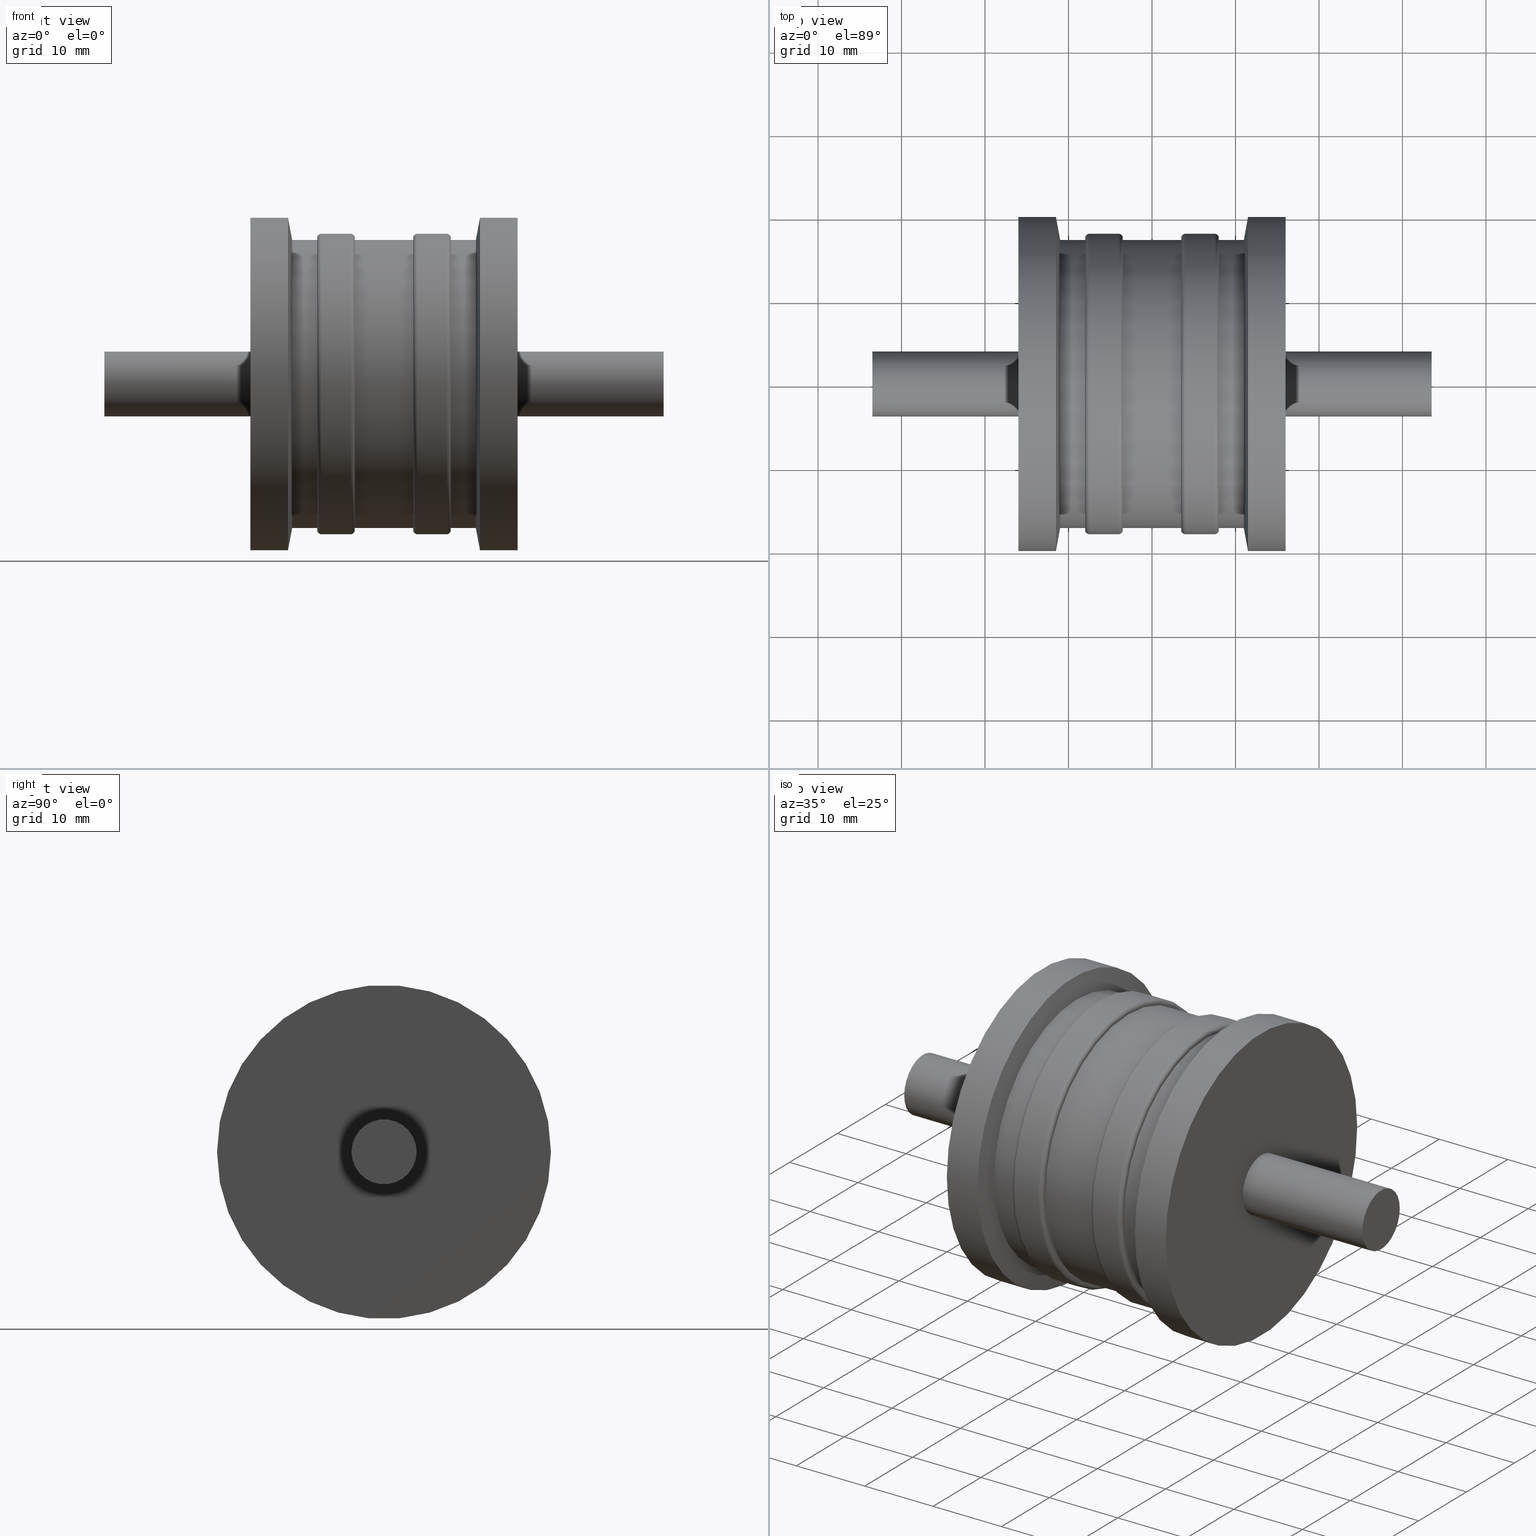
[diagram: canonical four-view strip — front | top / right | iso, engineering-drawing reading convention]
A machine part, canonical four-view strip (front | top / right | iso — engineering-drawing reading convention). The complete STEP part file that produces these views, byte-faithful:
ISO-10303-21;
HEADER;
/* Generated by software containing ST-Developer
 * from STEP Tools, Inc. (www.steptools.com) 
 */

FILE_DESCRIPTION(
/* description */ (''),
/* implementation_level */ '2;1');

FILE_NAME(
/* name */ 
'\\\\SYNOLOGYNAS\\web\\db2\\PR8-M8-D40-H32\\\X2\B3C4BA74\X0\\\DR_PR8-M
8-D40-H32.stp',
/* time_stamp */ '2024-10-21T13:27:52+09:00',
/* author */ ('user'),
/* organization */ (''),
/* preprocessor_version */ 'ST-DEVELOPER v15.6',
/* originating_system */ 'Autodesk Inventor 2015',
/* authorisation */ '');

FILE_SCHEMA (('AUTOMOTIVE_DESIGN { 1 0 10303 214 3 1 1 }'));
ENDSEC;

DATA;
#10=MECHANICAL_DESIGN_GEOMETRIC_PRESENTATION_REPRESENTATION('',(#13),#469);
#11=SHAPE_REPRESENTATION_RELATIONSHIP('SRR','None',#478,#12);
#12=ADVANCED_BREP_SHAPE_REPRESENTATION($,(#14),#468);
#13=STYLED_ITEM('',(#487),#14);
#14=MANIFOLD_SOLID_BREP('\X2\C194B9ACB4DC\X0\1',#259);
#15=CONICAL_SURFACE('',#288,18.625,79.695153531234);
#16=CONICAL_SURFACE('',#299,18.625,79.695153531234);
#17=PLANE('',#266);
#18=PLANE('',#270);
#19=PLANE('',#277);
#20=PLANE('',#281);
#21=PLANE('',#283);
#22=PLANE('',#291);
#23=PLANE('',#294);
#24=PLANE('',#303);
#25=CYLINDRICAL_SURFACE('',#264,18.);
#26=CYLINDRICAL_SURFACE('',#275,18.);
#27=CYLINDRICAL_SURFACE('',#286,20.);
#28=CYLINDRICAL_SURFACE('',#290,17.25);
#29=CYLINDRICAL_SURFACE('',#293,3.9);
#30=CYLINDRICAL_SURFACE('',#297,20.);
#31=CYLINDRICAL_SURFACE('',#301,17.25);
#32=CYLINDRICAL_SURFACE('',#302,17.25);
#33=CYLINDRICAL_SURFACE('',#305,3.9);
#34=FACE_BOUND('',#79,.T.);
#35=FACE_BOUND('',#81,.T.);
#36=FACE_BOUND('',#83,.T.);
#37=FACE_BOUND('',#85,.T.);
#38=FACE_BOUND('',#87,.T.);
#39=FACE_BOUND('',#89,.T.);
#40=FACE_BOUND('',#91,.T.);
#41=FACE_BOUND('',#93,.T.);
#42=FACE_BOUND('',#95,.T.);
#43=FACE_BOUND('',#97,.T.);
#44=FACE_BOUND('',#99,.T.);
#45=FACE_BOUND('',#101,.T.);
#46=FACE_BOUND('',#103,.T.);
#47=FACE_BOUND('',#105,.T.);
#48=FACE_BOUND('',#108,.T.);
#49=FACE_BOUND('',#110,.T.);
#50=FACE_BOUND('',#112,.T.);
#51=FACE_BOUND('',#114,.T.);
#52=FACE_BOUND('',#116,.T.);
#53=FACE_BOUND('',#118,.T.);
#54=FACE_BOUND('',#121,.T.);
#55=FACE_OUTER_BOUND('',#78,.T.);
#56=FACE_OUTER_BOUND('',#80,.T.);
#57=FACE_OUTER_BOUND('',#82,.T.);
#58=FACE_OUTER_BOUND('',#84,.T.);
#59=FACE_OUTER_BOUND('',#86,.T.);
#60=FACE_OUTER_BOUND('',#88,.T.);
#61=FACE_OUTER_BOUND('',#90,.T.);
#62=FACE_OUTER_BOUND('',#92,.T.);
#63=FACE_OUTER_BOUND('',#94,.T.);
#64=FACE_OUTER_BOUND('',#96,.T.);
#65=FACE_OUTER_BOUND('',#98,.T.);
#66=FACE_OUTER_BOUND('',#100,.T.);
#67=FACE_OUTER_BOUND('',#102,.T.);
#68=FACE_OUTER_BOUND('',#104,.T.);
#69=FACE_OUTER_BOUND('',#106,.T.);
#70=FACE_OUTER_BOUND('',#107,.T.);
#71=FACE_OUTER_BOUND('',#109,.T.);
#72=FACE_OUTER_BOUND('',#111,.T.);
#73=FACE_OUTER_BOUND('',#113,.T.);
#74=FACE_OUTER_BOUND('',#115,.T.);
#75=FACE_OUTER_BOUND('',#117,.T.);
#76=FACE_OUTER_BOUND('',#119,.T.);
#77=FACE_OUTER_BOUND('',#120,.T.);
#78=EDGE_LOOP('',(#188));
#79=EDGE_LOOP('',(#189));
#80=EDGE_LOOP('',(#190));
#81=EDGE_LOOP('',(#191));
#82=EDGE_LOOP('',(#192));
#83=EDGE_LOOP('',(#193));
#84=EDGE_LOOP('',(#194));
#85=EDGE_LOOP('',(#195));
#86=EDGE_LOOP('',(#196));
#87=EDGE_LOOP('',(#197));
#88=EDGE_LOOP('',(#198));
#89=EDGE_LOOP('',(#199));
#90=EDGE_LOOP('',(#200));
#91=EDGE_LOOP('',(#201));
#92=EDGE_LOOP('',(#202));
#93=EDGE_LOOP('',(#203));
#94=EDGE_LOOP('',(#204));
#95=EDGE_LOOP('',(#205));
#96=EDGE_LOOP('',(#206));
#97=EDGE_LOOP('',(#207));
#98=EDGE_LOOP('',(#208));
#99=EDGE_LOOP('',(#209));
#100=EDGE_LOOP('',(#210));
#101=EDGE_LOOP('',(#211));
#102=EDGE_LOOP('',(#212));
#103=EDGE_LOOP('',(#213));
#104=EDGE_LOOP('',(#214));
#105=EDGE_LOOP('',(#215));
#106=EDGE_LOOP('',(#216));
#107=EDGE_LOOP('',(#217));
#108=EDGE_LOOP('',(#218));
#109=EDGE_LOOP('',(#219));
#110=EDGE_LOOP('',(#220));
#111=EDGE_LOOP('',(#221));
#112=EDGE_LOOP('',(#222));
#113=EDGE_LOOP('',(#223));
#114=EDGE_LOOP('',(#224));
#115=EDGE_LOOP('',(#225));
#116=EDGE_LOOP('',(#226));
#117=EDGE_LOOP('',(#227));
#118=EDGE_LOOP('',(#228));
#119=EDGE_LOOP('',(#229));
#120=EDGE_LOOP('',(#230));
#121=EDGE_LOOP('',(#231));
#122=CIRCLE('',#262,18.);
#123=CIRCLE('',#263,17.5);
#124=CIRCLE('',#265,18.);
#125=CIRCLE('',#267,17.25);
#126=CIRCLE('',#269,17.5);
#127=CIRCLE('',#271,17.25);
#128=CIRCLE('',#273,17.5);
#129=CIRCLE('',#274,18.);
#130=CIRCLE('',#276,18.);
#131=CIRCLE('',#278,17.25);
#132=CIRCLE('',#280,17.5);
#133=CIRCLE('',#282,17.25);
#134=CIRCLE('',#284,20.);
#135=CIRCLE('',#285,3.9);
#136=CIRCLE('',#287,20.);
#137=CIRCLE('',#289,17.25);
#138=CIRCLE('',#292,3.9);
#139=CIRCLE('',#295,20.);
#140=CIRCLE('',#296,3.9);
#141=CIRCLE('',#298,20.);
#142=CIRCLE('',#300,17.25);
#143=CIRCLE('',#304,3.9);
#144=VERTEX_POINT('',#400);
#145=VERTEX_POINT('',#402);
#146=VERTEX_POINT('',#405);
#147=VERTEX_POINT('',#408);
#148=VERTEX_POINT('',#411);
#149=VERTEX_POINT('',#414);
#150=VERTEX_POINT('',#417);
#151=VERTEX_POINT('',#419);
#152=VERTEX_POINT('',#422);
#153=VERTEX_POINT('',#425);
#154=VERTEX_POINT('',#428);
#155=VERTEX_POINT('',#431);
#156=VERTEX_POINT('',#434);
#157=VERTEX_POINT('',#436);
#158=VERTEX_POINT('',#439);
#159=VERTEX_POINT('',#442);
#160=VERTEX_POINT('',#446);
#161=VERTEX_POINT('',#450);
#162=VERTEX_POINT('',#452);
#163=VERTEX_POINT('',#455);
#164=VERTEX_POINT('',#458);
#165=VERTEX_POINT('',#463);
#166=EDGE_CURVE('',#144,#144,#122,.T.);
#167=EDGE_CURVE('',#145,#145,#123,.T.);
#168=EDGE_CURVE('',#146,#146,#124,.T.);
#169=EDGE_CURVE('',#147,#147,#125,.T.);
#170=EDGE_CURVE('',#148,#148,#126,.T.);
#171=EDGE_CURVE('',#149,#149,#127,.T.);
#172=EDGE_CURVE('',#150,#150,#128,.T.);
#173=EDGE_CURVE('',#151,#151,#129,.T.);
#174=EDGE_CURVE('',#152,#152,#130,.T.);
#175=EDGE_CURVE('',#153,#153,#131,.T.);
#176=EDGE_CURVE('',#154,#154,#132,.T.);
#177=EDGE_CURVE('',#155,#155,#133,.T.);
#178=EDGE_CURVE('',#156,#156,#134,.T.);
#179=EDGE_CURVE('',#157,#157,#135,.T.);
#180=EDGE_CURVE('',#158,#158,#136,.T.);
#181=EDGE_CURVE('',#159,#159,#137,.T.);
#182=EDGE_CURVE('',#160,#160,#138,.T.);
#183=EDGE_CURVE('',#161,#161,#139,.T.);
#184=EDGE_CURVE('',#162,#162,#140,.T.);
#185=EDGE_CURVE('',#163,#163,#141,.T.);
#186=EDGE_CURVE('',#164,#164,#142,.T.);
#187=EDGE_CURVE('',#165,#165,#143,.T.);
#188=ORIENTED_EDGE('',*,*,#166,.T.);
#189=ORIENTED_EDGE('',*,*,#167,.T.);
#190=ORIENTED_EDGE('',*,*,#168,.F.);
#191=ORIENTED_EDGE('',*,*,#166,.F.);
#192=ORIENTED_EDGE('',*,*,#167,.F.);
#193=ORIENTED_EDGE('',*,*,#169,.F.);
#194=ORIENTED_EDGE('',*,*,#170,.T.);
#195=ORIENTED_EDGE('',*,*,#168,.T.);
#196=ORIENTED_EDGE('',*,*,#170,.F.);
#197=ORIENTED_EDGE('',*,*,#171,.T.);
#198=ORIENTED_EDGE('',*,*,#172,.T.);
#199=ORIENTED_EDGE('',*,*,#173,.T.);
#200=ORIENTED_EDGE('',*,*,#174,.F.);
#201=ORIENTED_EDGE('',*,*,#173,.F.);
#202=ORIENTED_EDGE('',*,*,#172,.F.);
#203=ORIENTED_EDGE('',*,*,#175,.T.);
#204=ORIENTED_EDGE('',*,*,#174,.T.);
#205=ORIENTED_EDGE('',*,*,#176,.T.);
#206=ORIENTED_EDGE('',*,*,#176,.F.);
#207=ORIENTED_EDGE('',*,*,#177,.F.);
#208=ORIENTED_EDGE('',*,*,#178,.T.);
#209=ORIENTED_EDGE('',*,*,#179,.F.);
#210=ORIENTED_EDGE('',*,*,#178,.F.);
#211=ORIENTED_EDGE('',*,*,#180,.T.);
#212=ORIENTED_EDGE('',*,*,#180,.F.);
#213=ORIENTED_EDGE('',*,*,#181,.T.);
#214=ORIENTED_EDGE('',*,*,#181,.F.);
#215=ORIENTED_EDGE('',*,*,#169,.T.);
#216=ORIENTED_EDGE('',*,*,#182,.T.);
#217=ORIENTED_EDGE('',*,*,#182,.F.);
#218=ORIENTED_EDGE('',*,*,#179,.T.);
#219=ORIENTED_EDGE('',*,*,#183,.F.);
#220=ORIENTED_EDGE('',*,*,#184,.T.);
#221=ORIENTED_EDGE('',*,*,#183,.T.);
#222=ORIENTED_EDGE('',*,*,#185,.F.);
#223=ORIENTED_EDGE('',*,*,#185,.T.);
#224=ORIENTED_EDGE('',*,*,#186,.F.);
#225=ORIENTED_EDGE('',*,*,#186,.T.);
#226=ORIENTED_EDGE('',*,*,#175,.F.);
#227=ORIENTED_EDGE('',*,*,#171,.F.);
#228=ORIENTED_EDGE('',*,*,#177,.T.);
#229=ORIENTED_EDGE('',*,*,#187,.F.);
#230=ORIENTED_EDGE('',*,*,#187,.T.);
#231=ORIENTED_EDGE('',*,*,#184,.F.);
#232=TOROIDAL_SURFACE('',#261,17.5,0.5);
#233=TOROIDAL_SURFACE('',#268,17.5,0.5);
#234=TOROIDAL_SURFACE('',#272,17.5,0.5);
#235=TOROIDAL_SURFACE('',#279,17.5,0.5);
#236=ADVANCED_FACE('',(#55,#34),#232,.T.);
#237=ADVANCED_FACE('',(#56,#35),#25,.T.);
#238=ADVANCED_FACE('',(#57,#36),#17,.F.);
#239=ADVANCED_FACE('',(#58,#37),#233,.T.);
#240=ADVANCED_FACE('',(#59,#38),#18,.F.);
#241=ADVANCED_FACE('',(#60,#39),#234,.T.);
#242=ADVANCED_FACE('',(#61,#40),#26,.T.);
#243=ADVANCED_FACE('',(#62,#41),#19,.T.);
#244=ADVANCED_FACE('',(#63,#42),#235,.T.);
#245=ADVANCED_FACE('',(#64,#43),#20,.T.);
#246=ADVANCED_FACE('',(#65,#44),#21,.F.);
#247=ADVANCED_FACE('',(#66,#45),#27,.T.);
#248=ADVANCED_FACE('',(#67,#46),#15,.T.);
#249=ADVANCED_FACE('',(#68,#47),#28,.T.);
#250=ADVANCED_FACE('',(#69),#22,.F.);
#251=ADVANCED_FACE('',(#70,#48),#29,.T.);
#252=ADVANCED_FACE('',(#71,#49),#23,.T.);
#253=ADVANCED_FACE('',(#72,#50),#30,.T.);
#254=ADVANCED_FACE('',(#73,#51),#16,.T.);
#255=ADVANCED_FACE('',(#74,#52),#31,.T.);
#256=ADVANCED_FACE('',(#75,#53),#32,.T.);
#257=ADVANCED_FACE('',(#76),#24,.T.);
#258=ADVANCED_FACE('',(#77,#54),#33,.T.);
#259=CLOSED_SHELL('',(#236,#237,#238,#239,#240,#241,#242,#243,#244,#245,
#246,#247,#248,#249,#250,#251,#252,#253,#254,#255,#256,#257,#258));
#260=AXIS2_PLACEMENT_3D('placement',#398,#306,#307);
#261=AXIS2_PLACEMENT_3D('',#399,#308,#309);
#262=AXIS2_PLACEMENT_3D('',#401,#310,#311);
#263=AXIS2_PLACEMENT_3D('',#403,#312,#313);
#264=AXIS2_PLACEMENT_3D('',#404,#314,#315);
#265=AXIS2_PLACEMENT_3D('',#406,#316,#317);
#266=AXIS2_PLACEMENT_3D('',#407,#318,#319);
#267=AXIS2_PLACEMENT_3D('',#409,#320,#321);
#268=AXIS2_PLACEMENT_3D('',#410,#322,#323);
#269=AXIS2_PLACEMENT_3D('',#412,#324,#325);
#270=AXIS2_PLACEMENT_3D('',#413,#326,#327);
#271=AXIS2_PLACEMENT_3D('',#415,#328,#329);
#272=AXIS2_PLACEMENT_3D('',#416,#330,#331);
#273=AXIS2_PLACEMENT_3D('',#418,#332,#333);
#274=AXIS2_PLACEMENT_3D('',#420,#334,#335);
#275=AXIS2_PLACEMENT_3D('',#421,#336,#337);
#276=AXIS2_PLACEMENT_3D('',#423,#338,#339);
#277=AXIS2_PLACEMENT_3D('',#424,#340,#341);
#278=AXIS2_PLACEMENT_3D('',#426,#342,#343);
#279=AXIS2_PLACEMENT_3D('',#427,#344,#345);
#280=AXIS2_PLACEMENT_3D('',#429,#346,#347);
#281=AXIS2_PLACEMENT_3D('',#430,#348,#349);
#282=AXIS2_PLACEMENT_3D('',#432,#350,#351);
#283=AXIS2_PLACEMENT_3D('',#433,#352,#353);
#284=AXIS2_PLACEMENT_3D('',#435,#354,#355);
#285=AXIS2_PLACEMENT_3D('',#437,#356,#357);
#286=AXIS2_PLACEMENT_3D('',#438,#358,#359);
#287=AXIS2_PLACEMENT_3D('',#440,#360,#361);
#288=AXIS2_PLACEMENT_3D('',#441,#362,#363);
#289=AXIS2_PLACEMENT_3D('',#443,#364,#365);
#290=AXIS2_PLACEMENT_3D('',#444,#366,#367);
#291=AXIS2_PLACEMENT_3D('',#445,#368,#369);
#292=AXIS2_PLACEMENT_3D('',#447,#370,#371);
#293=AXIS2_PLACEMENT_3D('',#448,#372,#373);
#294=AXIS2_PLACEMENT_3D('',#449,#374,#375);
#295=AXIS2_PLACEMENT_3D('',#451,#376,#377);
#296=AXIS2_PLACEMENT_3D('',#453,#378,#379);
#297=AXIS2_PLACEMENT_3D('',#454,#380,#381);
#298=AXIS2_PLACEMENT_3D('',#456,#382,#383);
#299=AXIS2_PLACEMENT_3D('',#457,#384,#385);
#300=AXIS2_PLACEMENT_3D('',#459,#386,#387);
#301=AXIS2_PLACEMENT_3D('',#460,#388,#389);
#302=AXIS2_PLACEMENT_3D('',#461,#390,#391);
#303=AXIS2_PLACEMENT_3D('',#462,#392,#393);
#304=AXIS2_PLACEMENT_3D('',#464,#394,#395);
#305=AXIS2_PLACEMENT_3D('',#465,#396,#397);
#306=DIRECTION('axis',(0.,0.,1.));
#307=DIRECTION('refdir',(1.,0.,0.));
#308=DIRECTION('center_axis',(1.,0.,0.));
#309=DIRECTION('ref_axis',(0.,0.,-1.));
#310=DIRECTION('center_axis',(1.,0.,0.));
#311=DIRECTION('ref_axis',(0.,-1.,1.83697019872103E-16));
#312=DIRECTION('center_axis',(-1.,0.,0.));
#313=DIRECTION('ref_axis',(0.,-1.,1.83697019872103E-16));
#314=DIRECTION('center_axis',(1.,0.,0.));
#315=DIRECTION('ref_axis',(0.,1.,0.));
#316=DIRECTION('center_axis',(-1.,0.,0.));
#317=DIRECTION('ref_axis',(0.,-1.,1.83697019872103E-16));
#318=DIRECTION('center_axis',(-1.,0.,0.));
#319=DIRECTION('ref_axis',(0.,0.,1.));
#320=DIRECTION('center_axis',(1.,0.,0.));
#321=DIRECTION('ref_axis',(0.,0.,-1.));
#322=DIRECTION('center_axis',(1.,0.,0.));
#323=DIRECTION('ref_axis',(0.,0.,-1.));
#324=DIRECTION('center_axis',(1.,0.,0.));
#325=DIRECTION('ref_axis',(0.,-1.,1.83697019872103E-16));
#326=DIRECTION('center_axis',(1.,0.,0.));
#327=DIRECTION('ref_axis',(0.,0.,-1.));
#328=DIRECTION('center_axis',(1.,0.,0.));
#329=DIRECTION('ref_axis',(0.,0.,-1.));
#330=DIRECTION('center_axis',(1.,0.,0.));
#331=DIRECTION('ref_axis',(0.,0.,-1.));
#332=DIRECTION('center_axis',(1.,0.,0.));
#333=DIRECTION('ref_axis',(0.,-1.,1.83697019872103E-16));
#334=DIRECTION('center_axis',(-1.,0.,0.));
#335=DIRECTION('ref_axis',(0.,-1.,1.83697019872103E-16));
#336=DIRECTION('center_axis',(1.,0.,0.));
#337=DIRECTION('ref_axis',(0.,1.,0.));
#338=DIRECTION('center_axis',(1.,0.,0.));
#339=DIRECTION('ref_axis',(0.,-1.,1.83697019872103E-16));
#340=DIRECTION('center_axis',(-1.,0.,0.));
#341=DIRECTION('ref_axis',(0.,0.,1.));
#342=DIRECTION('center_axis',(1.,0.,0.));
#343=DIRECTION('ref_axis',(0.,0.,-1.));
#344=DIRECTION('center_axis',(1.,0.,0.));
#345=DIRECTION('ref_axis',(0.,0.,-1.));
#346=DIRECTION('center_axis',(-1.,0.,0.));
#347=DIRECTION('ref_axis',(0.,-1.,1.83697019872103E-16));
#348=DIRECTION('center_axis',(1.,0.,0.));
#349=DIRECTION('ref_axis',(0.,0.,-1.));
#350=DIRECTION('center_axis',(1.,0.,0.));
#351=DIRECTION('ref_axis',(0.,0.,-1.));
#352=DIRECTION('center_axis',(-1.,0.,0.));
#353=DIRECTION('ref_axis',(0.,0.,1.));
#354=DIRECTION('center_axis',(1.,0.,0.));
#355=DIRECTION('ref_axis',(0.,0.,-1.));
#356=DIRECTION('center_axis',(1.,0.,0.));
#357=DIRECTION('ref_axis',(0.,0.,-1.));
#358=DIRECTION('center_axis',(1.,0.,0.));
#359=DIRECTION('ref_axis',(0.,1.,0.));
#360=DIRECTION('center_axis',(1.,0.,0.));
#361=DIRECTION('ref_axis',(0.,0.,-1.));
#362=DIRECTION('center_axis',(1.,0.,0.));
#363=DIRECTION('ref_axis',(0.,1.,0.));
#364=DIRECTION('center_axis',(1.,0.,0.));
#365=DIRECTION('ref_axis',(0.,0.,-1.));
#366=DIRECTION('center_axis',(1.,0.,0.));
#367=DIRECTION('ref_axis',(0.,1.,0.));
#368=DIRECTION('center_axis',(-1.,0.,0.));
#369=DIRECTION('ref_axis',(0.,0.,1.));
#370=DIRECTION('center_axis',(1.,0.,0.));
#371=DIRECTION('ref_axis',(0.,0.,-1.));
#372=DIRECTION('center_axis',(1.,0.,0.));
#373=DIRECTION('ref_axis',(0.,1.,0.));
#374=DIRECTION('center_axis',(-1.,0.,0.));
#375=DIRECTION('ref_axis',(0.,0.,1.));
#376=DIRECTION('center_axis',(1.,0.,0.));
#377=DIRECTION('ref_axis',(0.,0.,-1.));
#378=DIRECTION('center_axis',(1.,0.,0.));
#379=DIRECTION('ref_axis',(0.,0.,-1.));
#380=DIRECTION('center_axis',(1.,0.,0.));
#381=DIRECTION('ref_axis',(0.,1.,0.));
#382=DIRECTION('center_axis',(1.,0.,0.));
#383=DIRECTION('ref_axis',(0.,0.,-1.));
#384=DIRECTION('center_axis',(-1.,0.,0.));
#385=DIRECTION('ref_axis',(0.,1.,0.));
#386=DIRECTION('center_axis',(1.,0.,0.));
#387=DIRECTION('ref_axis',(0.,0.,-1.));
#388=DIRECTION('center_axis',(1.,0.,0.));
#389=DIRECTION('ref_axis',(0.,1.,0.));
#390=DIRECTION('center_axis',(1.,0.,0.));
#391=DIRECTION('ref_axis',(0.,1.,0.));
#392=DIRECTION('center_axis',(-1.,0.,0.));
#393=DIRECTION('ref_axis',(0.,0.,1.));
#394=DIRECTION('center_axis',(1.,0.,0.));
#395=DIRECTION('ref_axis',(0.,0.,-1.));
#396=DIRECTION('center_axis',(1.,0.,0.));
#397=DIRECTION('ref_axis',(0.,1.,0.));
#398=CARTESIAN_POINT('',(0.,0.,0.));
#399=CARTESIAN_POINT('Origin',(7.5,0.,0.));
#400=CARTESIAN_POINT('',(7.5,18.,-1.10218211923262E-15));
#401=CARTESIAN_POINT('Origin',(7.5,0.,0.));
#402=CARTESIAN_POINT('',(8.,17.5,-5.35782974626967E-15));
#403=CARTESIAN_POINT('Origin',(8.,0.,0.));
#404=CARTESIAN_POINT('Origin',(5.75,0.,0.));
#405=CARTESIAN_POINT('',(4.,18.,-5.51091059616309E-15));
#406=CARTESIAN_POINT('Origin',(4.,0.,0.));
#407=CARTESIAN_POINT('Origin',(8.,18.,0.));
#408=CARTESIAN_POINT('',(8.,17.25,0.));
#409=CARTESIAN_POINT('Origin',(8.,0.,0.));
#410=CARTESIAN_POINT('Origin',(4.,0.,0.));
#411=CARTESIAN_POINT('',(3.5,17.5,-1.07156594925393E-15));
#412=CARTESIAN_POINT('Origin',(3.5,0.,0.));
#413=CARTESIAN_POINT('Origin',(3.5,17.25,0.));
#414=CARTESIAN_POINT('',(3.5,17.25,0.));
#415=CARTESIAN_POINT('Origin',(3.5,0.,0.));
#416=CARTESIAN_POINT('Origin',(-7.5,0.,0.));
#417=CARTESIAN_POINT('',(-8.,17.5,-1.07156594925393E-15));
#418=CARTESIAN_POINT('Origin',(-8.,0.,0.));
#419=CARTESIAN_POINT('',(-7.5,18.,-5.51091059616309E-15));
#420=CARTESIAN_POINT('Origin',(-7.5,0.,0.));
#421=CARTESIAN_POINT('Origin',(-5.75,0.,0.));
#422=CARTESIAN_POINT('',(-4.,18.,-1.10218211923262E-15));
#423=CARTESIAN_POINT('Origin',(-4.,0.,0.));
#424=CARTESIAN_POINT('Origin',(-8.,18.,0.));
#425=CARTESIAN_POINT('',(-8.,17.25,0.));
#426=CARTESIAN_POINT('Origin',(-8.,0.,0.));
#427=CARTESIAN_POINT('Origin',(-4.,0.,0.));
#428=CARTESIAN_POINT('',(-3.5,17.5,-5.35782974626967E-15));
#429=CARTESIAN_POINT('Origin',(-3.5,0.,0.));
#430=CARTESIAN_POINT('Origin',(-3.5,17.25,0.));
#431=CARTESIAN_POINT('',(-3.5,17.25,0.));
#432=CARTESIAN_POINT('Origin',(-3.5,0.,0.));
#433=CARTESIAN_POINT('Origin',(16.,20.,0.));
#434=CARTESIAN_POINT('',(16.,20.,0.));
#435=CARTESIAN_POINT('Origin',(16.,0.,0.));
#436=CARTESIAN_POINT('',(16.,3.9,0.));
#437=CARTESIAN_POINT('Origin',(16.,0.,0.));
#438=CARTESIAN_POINT('Origin',(13.75,0.,0.));
#439=CARTESIAN_POINT('',(11.5,20.,0.));
#440=CARTESIAN_POINT('Origin',(11.5,0.,0.));
#441=CARTESIAN_POINT('Origin',(11.25,0.,0.));
#442=CARTESIAN_POINT('',(11.,17.25,0.));
#443=CARTESIAN_POINT('Origin',(11.,0.,0.));
#444=CARTESIAN_POINT('Origin',(9.5,0.,0.));
#445=CARTESIAN_POINT('Origin',(33.5,3.9,0.));
#446=CARTESIAN_POINT('',(33.5,3.9,0.));
#447=CARTESIAN_POINT('Origin',(33.5,0.,0.));
#448=CARTESIAN_POINT('Origin',(24.75,0.,0.));
#449=CARTESIAN_POINT('Origin',(-16.,20.,0.));
#450=CARTESIAN_POINT('',(-16.,20.,0.));
#451=CARTESIAN_POINT('Origin',(-16.,0.,0.));
#452=CARTESIAN_POINT('',(-16.,3.9,0.));
#453=CARTESIAN_POINT('Origin',(-16.,0.,0.));
#454=CARTESIAN_POINT('Origin',(-13.75,0.,0.));
#455=CARTESIAN_POINT('',(-11.5,20.,0.));
#456=CARTESIAN_POINT('Origin',(-11.5,0.,0.));
#457=CARTESIAN_POINT('Origin',(-11.25,0.,0.));
#458=CARTESIAN_POINT('',(-11.,17.25,0.));
#459=CARTESIAN_POINT('Origin',(-11.,0.,0.));
#460=CARTESIAN_POINT('Origin',(-9.5,0.,0.));
#461=CARTESIAN_POINT('Origin',(-1.75,0.,0.));
#462=CARTESIAN_POINT('Origin',(-33.5,3.9,0.));
#463=CARTESIAN_POINT('',(-33.5,3.9,0.));
#464=CARTESIAN_POINT('Origin',(-33.5,0.,0.));
#465=CARTESIAN_POINT('Origin',(-24.75,0.,0.));
#466=UNCERTAINTY_MEASURE_WITH_UNIT(LENGTH_MEASURE(0.01),#470,
'DISTANCE_ACCURACY_VALUE',
'Maximum model space distance between geometric entities at asserted c
onnectivities');
#467=UNCERTAINTY_MEASURE_WITH_UNIT(LENGTH_MEASURE(1.E-6),#470,
'DISTANCE_ACCURACY_VALUE',
'Maximum model space distance between geometric entities at asserted c
onnectivities');
#468=(
GEOMETRIC_REPRESENTATION_CONTEXT(3)
GLOBAL_UNCERTAINTY_ASSIGNED_CONTEXT((#466))
GLOBAL_UNIT_ASSIGNED_CONTEXT((#470,#473,#471))
REPRESENTATION_CONTEXT('','3D')
);
#469=(
GEOMETRIC_REPRESENTATION_CONTEXT(3)
GLOBAL_UNCERTAINTY_ASSIGNED_CONTEXT((#467))
GLOBAL_UNIT_ASSIGNED_CONTEXT((#470,#473,#471))
REPRESENTATION_CONTEXT('','3D')
);
#470=(
LENGTH_UNIT()
NAMED_UNIT(*)
SI_UNIT(.MILLI.,.METRE.)
);
#471=(
NAMED_UNIT(*)
SI_UNIT($,.STERADIAN.)
SOLID_ANGLE_UNIT()
);
#472=DIMENSIONAL_EXPONENTS(0.,0.,0.,0.,0.,0.,0.);
#473=(
CONVERSION_BASED_UNIT('degree',#475)
NAMED_UNIT(#472)
PLANE_ANGLE_UNIT()
);
#474=(
NAMED_UNIT(*)
PLANE_ANGLE_UNIT()
SI_UNIT($,.RADIAN.)
);
#475=PLANE_ANGLE_MEASURE_WITH_UNIT(PLANE_ANGLE_MEASURE(0.01745329252),#474);
#476=SHAPE_DEFINITION_REPRESENTATION(#477,#478);
#477=PRODUCT_DEFINITION_SHAPE('',$,#480);
#478=SHAPE_REPRESENTATION('',(#260),#468);
#479=PRODUCT_DEFINITION_CONTEXT('part definition',#484,'design');
#480=PRODUCT_DEFINITION('DR_PR8-M8-D40-H32','DR_PR8-M8-D40-H32',#481,#479);
#481=PRODUCT_DEFINITION_FORMATION('',$,#486);
#482=PRODUCT_RELATED_PRODUCT_CATEGORY('DR_PR8-M8-D40-H32',
'DR_PR8-M8-D40-H32',(#486));
#483=APPLICATION_PROTOCOL_DEFINITION('international standard',
'automotive_design',2009,#484);
#484=APPLICATION_CONTEXT(
'Core Data for Automotive Mechanical Design Process');
#485=PRODUCT_CONTEXT('part definition',#484,'mechanical');
#486=PRODUCT('DR_PR8-M8-D40-H32','DR_PR8-M8-D40-H32',$,(#485));
#487=PRESENTATION_STYLE_ASSIGNMENT((#488));
#488=SURFACE_STYLE_USAGE(.BOTH.,#489);
#489=SURFACE_SIDE_STYLE($,(#490));
#490=SURFACE_STYLE_FILL_AREA(#491);
#491=FILL_AREA_STYLE($,(#492));
#492=FILL_AREA_STYLE_COLOUR($,#493);
#493=COLOUR_RGB('',1.,1.,1.);
ENDSEC;
END-ISO-10303-21;
